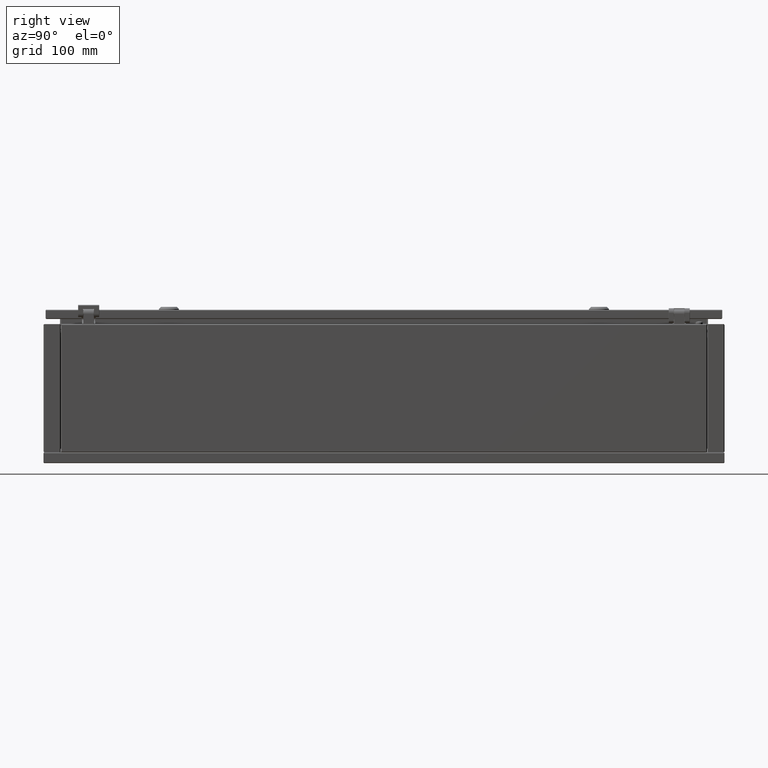
[diagram: clean part render]
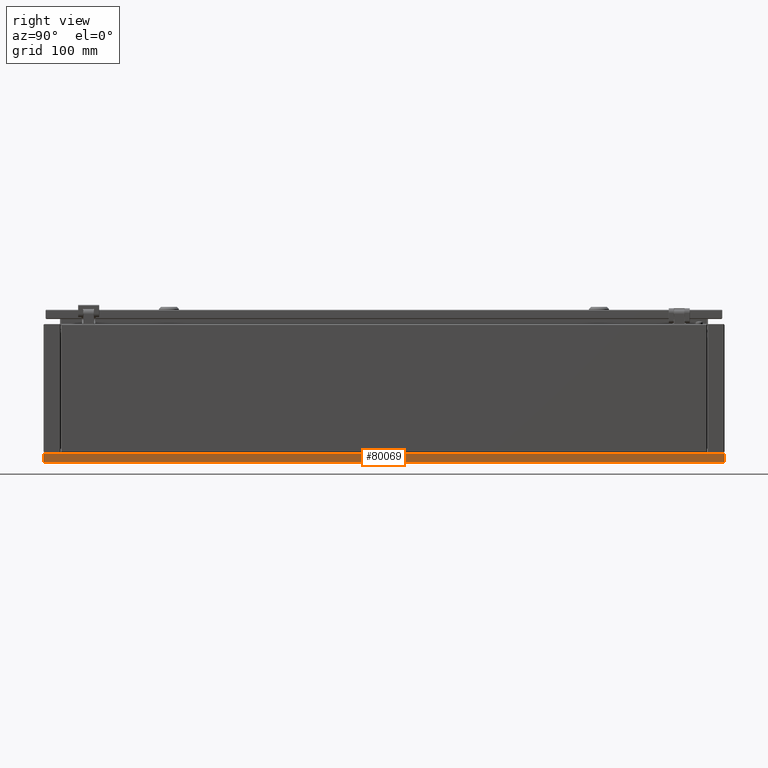
[diagram: same view with one face highlighted and labeled with its STEP entity id]
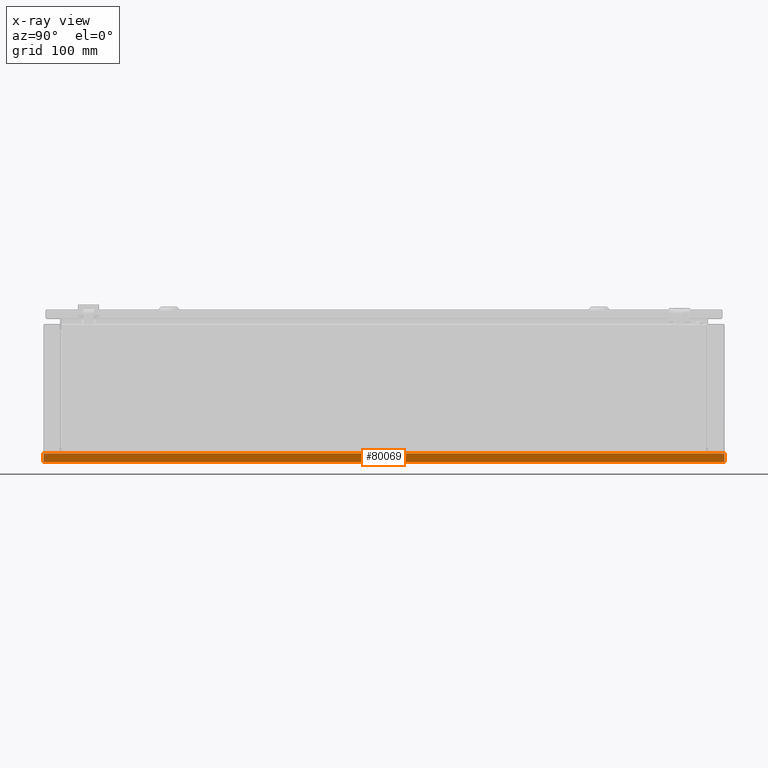
[diagram: x-ray of the same camera — body ghosted, the highlighted face saturated]
A machine part, right view. The second image highlights one B-rep face of the part: STEP entity #80069.
The next image is the same camera in x-ray: the body ghosted, the highlighted face saturated — about 0% of this face is hidden behind the body in this view.
In plain terms, the highlighted planar face has unit normal (-1, -0, 0).
Its self-contained STEP definition (entity closure, byte-faithful):
#247 = VECTOR ( 'NONE', #10067, 1000.000000000000000 ) ;
#326 = VECTOR ( 'NONE', #38972, 1000.000000000000000 ) ;
#5623 = LINE ( 'NONE', #58656, #326 ) ;
#7001 = VERTEX_POINT ( 'NONE', #12103 ) ;
#7459 = ORIENTED_EDGE ( 'NONE', *, *, #59458, .F. ) ;
#10067 = DIRECTION ( 'NONE',  ( 4.625929269271440400E-015, -4.625929269271440400E-015, 1.000000000000000000 ) ) ;
#12103 = CARTESIAN_POINT ( 'NONE',  ( 150.0000000000000000, -475.0000000000000000, 0.4999999999999730200 ) ) ;
#12876 = VERTEX_POINT ( 'NONE', #86436 ) ;
#19503 = CARTESIAN_POINT ( 'NONE',  ( 150.0000000000000000, -8.030397729885340900E-014, -5.551115123125780700E-013 ) ) ;
#19830 = VERTEX_POINT ( 'NONE', #74972 ) ;
#22260 = EDGE_LOOP ( 'NONE', ( #48687, #85898, #7459, #29176 ) ) ;
#29176 = ORIENTED_EDGE ( 'NONE', *, *, #38688, .T. ) ;
#30710 = EDGE_CURVE ( 'NONE', #7001, #19830, #64079, .T. ) ;
#32043 = CARTESIAN_POINT ( 'NONE',  ( 150.0000000000000000, 475.0000000000000000, 0.5000000000000279800 ) ) ;
#33578 = CARTESIAN_POINT ( 'NONE',  ( 150.0000000000000000, 475.0000000000000000, 12.50000000000000000 ) ) ;
#38510 = AXIS2_PLACEMENT_3D ( 'NONE', #19503, #53146, #60018 ) ;
#38688 = EDGE_CURVE ( 'NONE', #12876, #45186, #52665, .T. ) ;
#38972 = DIRECTION ( 'NONE',  ( 0.0000000000000000000, -1.000000000000000000, 7.172257930654569200E-032 ) ) ;
#43486 = CARTESIAN_POINT ( 'NONE',  ( 150.0000000000000000, -475.0000000000000000, 0.5000000000001120200 ) ) ;
#45186 = VERTEX_POINT ( 'NONE', #33578 ) ;
#48687 = ORIENTED_EDGE ( 'NONE', *, *, #83573, .T. ) ;
#50852 = FACE_OUTER_BOUND ( 'NONE', #22260, .T. ) ;
#51106 = CARTESIAN_POINT ( 'NONE',  ( 150.0000000000000000, -475.0000000000000000, 0.4999999999999730200 ) ) ;
#52568 = DIRECTION ( 'NONE',  ( 2.312964634635740300E-015, 4.625929269271480600E-015, 1.000000000000000000 ) ) ;
#52665 = LINE ( 'NONE', #32043, #84493 ) ;
#53146 = DIRECTION ( 'NONE',  ( -1.000000000000000000, -5.843279076974510200E-017, 3.965082230804130600E-015 ) ) ;
#57161 = DIRECTION ( 'NONE',  ( 5.843279076974520100E-017, -1.000000000000000000, 2.921639538487265000E-017 ) ) ;
#58656 = CARTESIAN_POINT ( 'NONE',  ( 150.0000000000000000, 473.2928932188140200, 12.50000000000000000 ) ) ;
#59458 = EDGE_CURVE ( 'NONE', #12876, #7001, #79072, .T. ) ;
#60018 = DIRECTION ( 'NONE',  ( 3.965082230804130600E-015, 1.754467800008969900E-031, 1.000000000000000000 ) ) ;
#60601 = PLANE ( 'NONE',  #38510 ) ;
#61032 = VECTOR ( 'NONE', #57161, 1000.000000000000000 ) ;
#64079 = LINE ( 'NONE', #51106, #247 ) ;
#74972 = CARTESIAN_POINT ( 'NONE',  ( 150.0000000000000000, -475.0000000000000000, 12.50000000000032000 ) ) ;
#79072 = LINE ( 'NONE', #43486, #61032 ) ;
#80069 = ADVANCED_FACE ( 'NONE', ( #50852 ), #60601, .F. ) ;
#83573 = EDGE_CURVE ( 'NONE', #45186, #19830, #5623, .T. ) ;
#84493 = VECTOR ( 'NONE', #52568, 1000.000000000000000 ) ;
#85898 = ORIENTED_EDGE ( 'NONE', *, *, #30710, .F. ) ;
#86436 = CARTESIAN_POINT ( 'NONE',  ( 150.0000000000000000, 475.0000000000000000, 0.5000000000000279800 ) ) ;